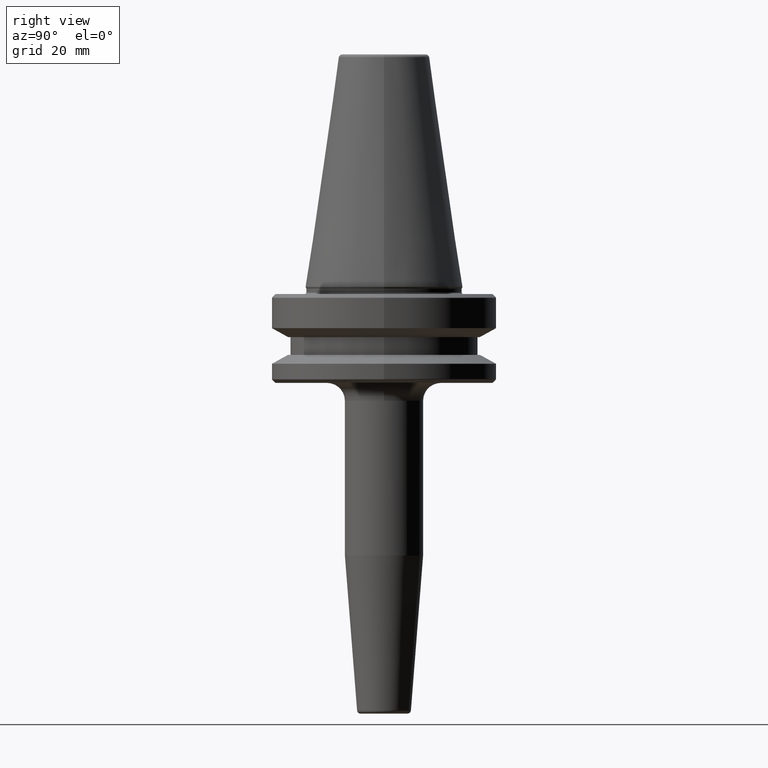
[diagram: clean part render]
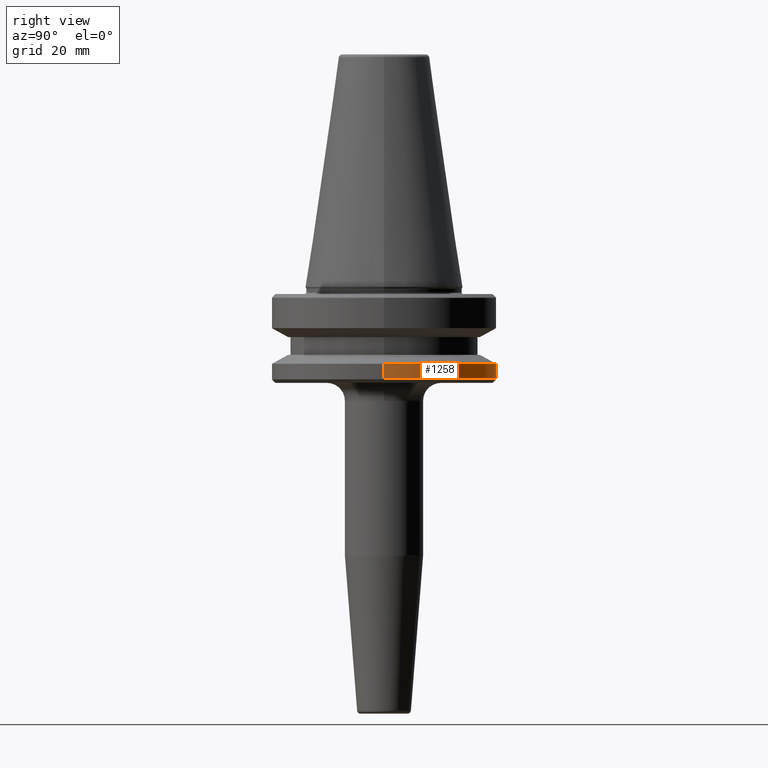
[diagram: same view with one face highlighted and labeled with its STEP entity id]
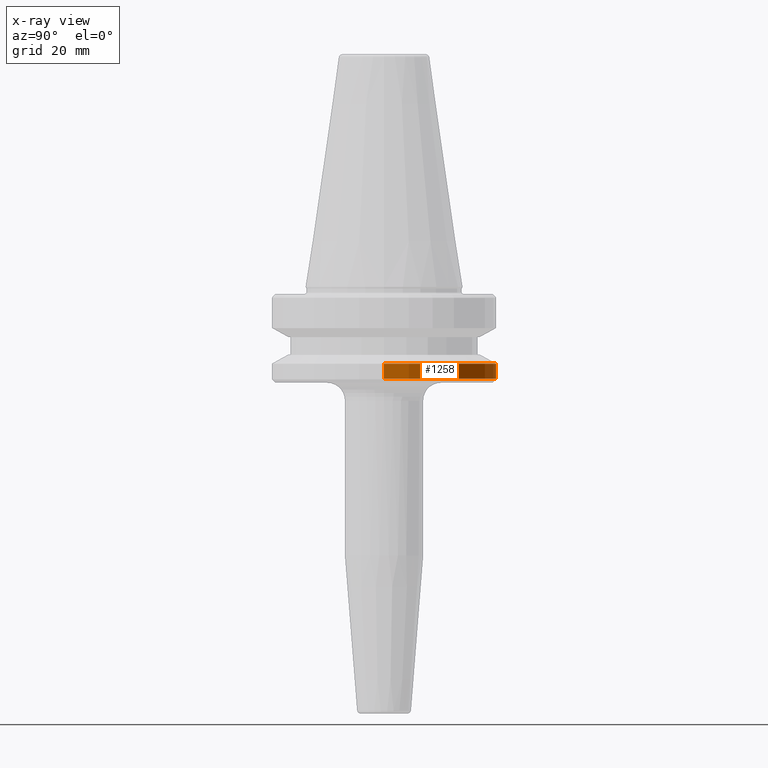
[diagram: x-ray of the same camera — body ghosted, the highlighted face saturated]
A machine part, right view. The second image highlights one B-rep face of the part: STEP entity #1258.
The next image is the same camera in x-ray: the body ghosted, the highlighted face saturated — about 0% of this face is hidden behind the body in this view.
In plain terms, the highlighted cylindrical surface (partial cylindrical patch) has radius 31.5 mm, axis along (-0, -0, 1).
Its self-contained STEP definition (entity closure, byte-faithful):
#61 = ORIENTED_EDGE ( 'NONE', *, *, #315, .T. ) ;
#99 = DIRECTION ( 'NONE',  ( 1.000000000000000000, 0.0000000000000000000, 0.0000000000000000000 ) ) ;
#140 = EDGE_CURVE ( 'NONE', #1112, #536, #1281, .T. ) ;
#177 = CARTESIAN_POINT ( 'NONE',  ( 31.50000000000000000, 0.0000000000000000000, -21.60014200631675500 ) ) ;
#210 = CARTESIAN_POINT ( 'NONE',  ( 0.0000000000000000000, 0.0000000000000000000, -25.83431457505076900 ) ) ;
#216 = AXIS2_PLACEMENT_3D ( 'NONE', #959, #237, #909 ) ;
#230 = ORIENTED_EDGE ( 'NONE', *, *, #710, .F. ) ;
#237 = DIRECTION ( 'NONE',  ( -0.0000000000000000000, -0.0000000000000000000, 1.000000000000000000 ) ) ;
#238 = FACE_OUTER_BOUND ( 'NONE', #244, .T. ) ;
#244 = EDGE_LOOP ( 'NONE', ( #61, #1050, #1262, #230 ) ) ;
#278 = CARTESIAN_POINT ( 'NONE',  ( 31.50000000000000000, 0.0000000000000000000, 69.75694866325665100 ) ) ;
#283 = CIRCLE ( 'NONE', #1083, 31.50000000000000000 ) ;
#315 = EDGE_CURVE ( 'NONE', #588, #1112, #283, .T. ) ;
#356 = CARTESIAN_POINT ( 'NONE',  ( 31.50000000000000000, 0.0000000000000000000, -25.83431457505076900 ) ) ;
#357 = EDGE_CURVE ( 'NONE', #1098, #536, #634, .T. ) ;
#373 = AXIS2_PLACEMENT_3D ( 'NONE', #888, #480, #1266 ) ;
#399 = LINE ( 'NONE', #278, #651 ) ;
#464 = CYLINDRICAL_SURFACE ( 'NONE', #373, 31.50000000000000000 ) ;
#480 = DIRECTION ( 'NONE',  ( -0.0000000000000000000, -0.0000000000000000000, 1.000000000000000000 ) ) ;
#502 = VECTOR ( 'NONE', #1244, 1000.000000000000000 ) ;
#536 = VERTEX_POINT ( 'NONE', #866 ) ;
#537 = CARTESIAN_POINT ( 'NONE',  ( -31.50000000000000000, 3.857637417314162700E-015, 69.75694866325665100 ) ) ;
#555 = CARTESIAN_POINT ( 'NONE',  ( -31.50000000000000000, 3.857637417314162700E-015, -25.83431457505076900 ) ) ;
#588 = VERTEX_POINT ( 'NONE', #356 ) ;
#634 = CIRCLE ( 'NONE', #216, 31.50000000000000000 ) ;
#651 = VECTOR ( 'NONE', #938, 1000.000000000000000 ) ;
#710 = EDGE_CURVE ( 'NONE', #588, #1098, #399, .T. ) ;
#798 = DIRECTION ( 'NONE',  ( -0.0000000000000000000, -0.0000000000000000000, 1.000000000000000000 ) ) ;
#866 = CARTESIAN_POINT ( 'NONE',  ( -31.50000000000000000, 3.857637417314162700E-015, -21.60014200631675500 ) ) ;
#888 = CARTESIAN_POINT ( 'NONE',  ( 0.0000000000000000000, 0.0000000000000000000, 69.75694866325665100 ) ) ;
#909 = DIRECTION ( 'NONE',  ( 1.000000000000000000, 0.0000000000000000000, 0.0000000000000000000 ) ) ;
#938 = DIRECTION ( 'NONE',  ( -0.0000000000000000000, -0.0000000000000000000, 1.000000000000000000 ) ) ;
#959 = CARTESIAN_POINT ( 'NONE',  ( 0.0000000000000000000, 0.0000000000000000000, -21.60014200631675500 ) ) ;
#1050 = ORIENTED_EDGE ( 'NONE', *, *, #140, .T. ) ;
#1083 = AXIS2_PLACEMENT_3D ( 'NONE', #210, #798, #99 ) ;
#1098 = VERTEX_POINT ( 'NONE', #177 ) ;
#1112 = VERTEX_POINT ( 'NONE', #555 ) ;
#1244 = DIRECTION ( 'NONE',  ( -0.0000000000000000000, -0.0000000000000000000, 1.000000000000000000 ) ) ;
#1258 = ADVANCED_FACE ( 'NONE', ( #238 ), #464, .T. ) ;
#1262 = ORIENTED_EDGE ( 'NONE', *, *, #357, .F. ) ;
#1266 = DIRECTION ( 'NONE',  ( 1.000000000000000000, 0.0000000000000000000, 0.0000000000000000000 ) ) ;
#1281 = LINE ( 'NONE', #537, #502 ) ;